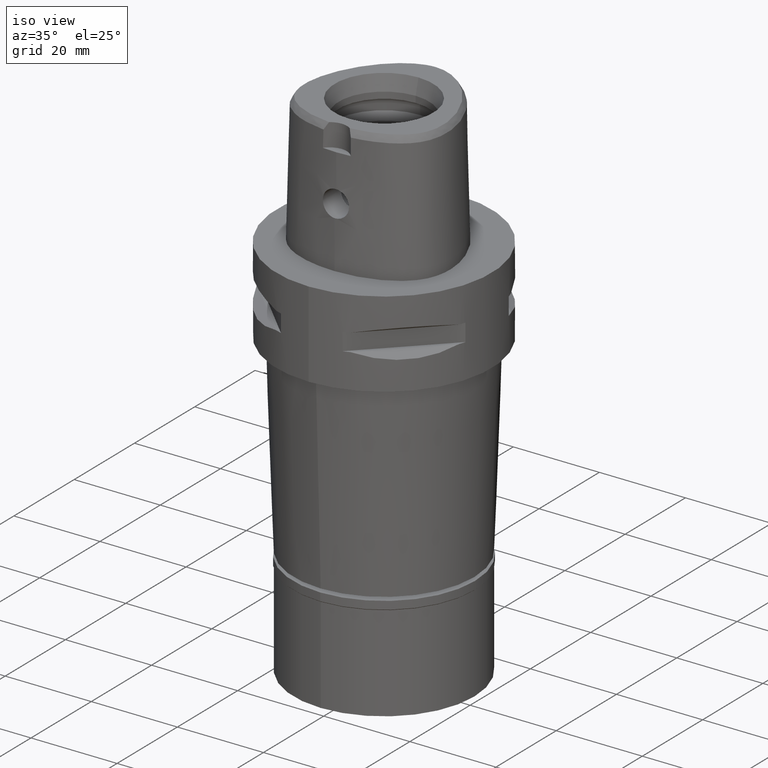
[diagram: clean part render]
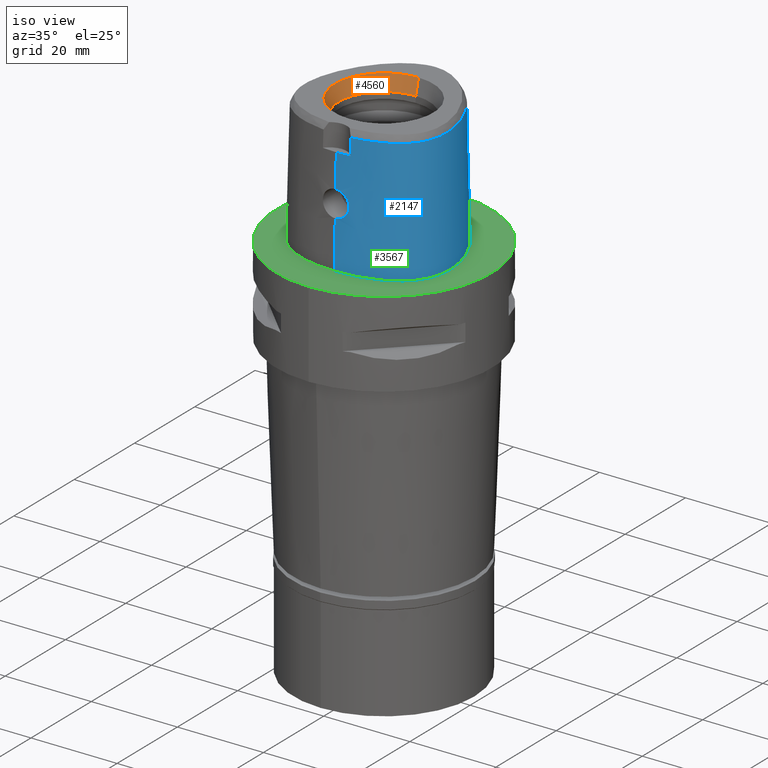
[diagram: same view with three faces highlighted in distinct colors, each labeled with its STEP entity id]
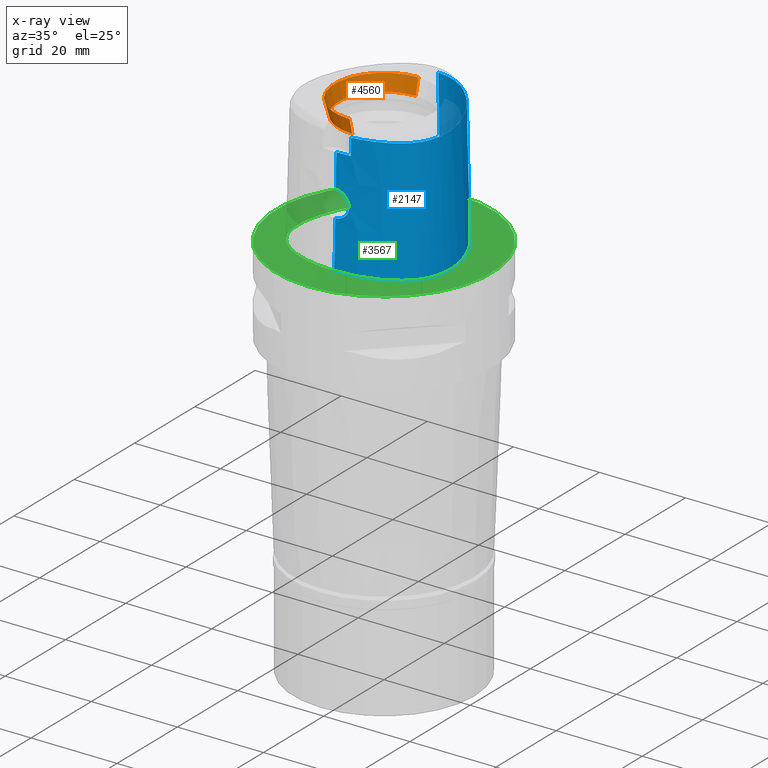
[diagram: x-ray of the same camera — body ghosted, the three highlighted faces saturated]
A machine part, iso view with three faces highlighted in distinct colors.
The next image is the same camera in x-ray (body ghosted, the three faces saturated) — at least one of them is partly hidden behind the body in this view.
Their STEP definitions:

[orange] entity #4560 — the highlighted conical surface has half-angle 15 deg.
#42 = AXIS2_PLACEMENT_3D ( 'NONE', #746, #2156, #1814 ) ;
#189 = VECTOR ( 'NONE', #4625, 1000.000000000000114 ) ;
#321 = CARTESIAN_POINT ( 'NONE',  ( 0.0000000000000000000, 11.43782217350000074, 30.00000000000000000 ) ) ;
#547 = VERTEX_POINT ( 'NONE', #2589 ) ;
#579 = CARTESIAN_POINT ( 'NONE',  ( 0.0000000000000000000, -10.50000000000000000, 26.50000000000000000 ) ) ;
#646 = FACE_OUTER_BOUND ( 'NONE', #3792, .T. ) ;
#746 = CARTESIAN_POINT ( 'NONE',  ( 0.0000000000000000000, 1.570609519905999910E-14, 28.25000000000000000 ) ) ;
#820 = CARTESIAN_POINT ( 'NONE',  ( 0.0000000000000000000, 10.50000000000000000, 26.50000000000000000 ) ) ;
#956 = DIRECTION ( 'NONE',  ( 0.0000000000000000000, 0.0000000000000000000, 1.000000000000000000 ) ) ;
#1047 = VERTEX_POINT ( 'NONE', #2767 ) ;
#1293 = EDGE_CURVE ( 'NONE', #1047, #547, #3263, .T. ) ;
#1507 = AXIS2_PLACEMENT_3D ( 'NONE', #3999, #956, #3305 ) ;
#1814 = DIRECTION ( 'NONE',  ( 0.0000000000000000000, 1.000000000000000000, 0.0000000000000000000 ) ) ;
#1973 = ORIENTED_EDGE ( 'NONE', *, *, #4007, .T. ) ;
#2090 = CONICAL_SURFACE ( 'NONE', #42, 10.96891108674999948, 0.2617993877991000029 ) ;
#2156 = DIRECTION ( 'NONE',  ( 0.0000000000000000000, 0.0000000000000000000, 1.000000000000000000 ) ) ;
#2293 = DIRECTION ( 'NONE',  ( 0.0000000000000000000, 1.000000000000000000, 0.0000000000000000000 ) ) ;
#2313 = CARTESIAN_POINT ( 'NONE',  ( 0.0000000000000000000, 1.570609519905999910E-14, 26.50000000000000000 ) ) ;
#2347 = VECTOR ( 'NONE', #3874, 1000.000000000000114 ) ;
#2375 = VERTEX_POINT ( 'NONE', #2431 ) ;
#2431 = CARTESIAN_POINT ( 'NONE',  ( 0.0000000000000000000, -11.43782217350000074, 30.00000000000000000 ) ) ;
#2452 = LINE ( 'NONE', #579, #189 ) ;
#2589 = CARTESIAN_POINT ( 'NONE',  ( 0.0000000000000000000, -10.50000000000000000, 26.50000000000000000 ) ) ;
#2767 = CARTESIAN_POINT ( 'NONE',  ( 0.0000000000000000000, 10.50000000000000000, 26.50000000000000000 ) ) ;
#3001 = DIRECTION ( 'NONE',  ( 0.0000000000000000000, 0.0000000000000000000, 1.000000000000000000 ) ) ;
#3023 = EDGE_CURVE ( 'NONE', #1047, #4062, #4198, .T. ) ;
#3243 = ORIENTED_EDGE ( 'NONE', *, *, #4871, .F. ) ;
#3263 = CIRCLE ( 'NONE', #4603, 10.50000000000000000 ) ;
#3305 = DIRECTION ( 'NONE',  ( 0.0000000000000000000, 1.000000000000000000, 0.0000000000000000000 ) ) ;
#3611 = CIRCLE ( 'NONE', #1507, 11.43782217350000074 ) ;
#3792 = EDGE_LOOP ( 'NONE', ( #3243, #4188, #4222, #1973 ) ) ;
#3874 = DIRECTION ( 'NONE',  ( 0.0000000000000000000, 0.2588190451023999472, 0.9659258262891006197 ) ) ;
#3999 = CARTESIAN_POINT ( 'NONE',  ( 0.0000000000000000000, 1.570609519905999910E-14, 30.00000000000000000 ) ) ;
#4007 = EDGE_CURVE ( 'NONE', #4062, #2375, #3611, .T. ) ;
#4062 = VERTEX_POINT ( 'NONE', #321 ) ;
#4188 = ORIENTED_EDGE ( 'NONE', *, *, #1293, .F. ) ;
#4198 = LINE ( 'NONE', #820, #2347 ) ;
#4222 = ORIENTED_EDGE ( 'NONE', *, *, #3023, .T. ) ;
#4560 = ADVANCED_FACE ( 'NONE', ( #646 ), #2090, .F. ) ;
#4603 = AXIS2_PLACEMENT_3D ( 'NONE', #2313, #3001, #2293 ) ;
#4625 = DIRECTION ( 'NONE',  ( 0.0000000000000000000, -0.2588190451023999472, 0.9659258262891006197 ) ) ;
#4871 = EDGE_CURVE ( 'NONE', #547, #2375, #2452, .T. ) ;

[blue] entity #2147 — the highlighted face is a freeform B-spline surface patch.
#86 = CARTESIAN_POINT ( 'NONE',  ( 8.782085053823999843, -14.58525444334000021, 19.20397109997000129 ) ) ;
#91 = CARTESIAN_POINT ( 'NONE',  ( 16.66912841146282531, -8.445800776827478984, 4.345083226867888643E-07 ) ) ;
#104 = FACE_OUTER_BOUND ( 'NONE', #2736, .T. ) ;
#108 = CARTESIAN_POINT ( 'NONE',  ( 4.728927202146822495, 17.73480467756198564, 4.345083226867888643E-07 ) ) ;
#118 = CARTESIAN_POINT ( 'NONE',  ( 16.79165444020089026, -0.3537785292841398865, 28.52071728562177455 ) ) ;
#128 = CARTESIAN_POINT ( 'NONE',  ( 16.00353219674999750, -8.149703023821999182, 29.09116414154000196 ) ) ;
#129 = CARTESIAN_POINT ( 'NONE',  ( 2.709953204679841132, -16.00846021379278739, 12.59958595635182732 ) ) ;
#134 = CARTESIAN_POINT ( 'NONE',  ( 2.040572355431404361, 18.55015623930288626, 4.345083226867888643E-07 ) ) ;
#152 = CARTESIAN_POINT ( 'NONE',  ( 16.84071370723999905, -5.352498061920000438, 29.09116414154000196 ) ) ;
#153 = CARTESIAN_POINT ( 'NONE',  ( 1.719191830040064373, -16.11523926597385525, 11.47872671524811672 ) ) ;
#172 = CARTESIAN_POINT ( 'NONE',  ( 13.36241655668000128, -12.29868522778000006, 9.316778058403000884 ) ) ;
#186 = CARTESIAN_POINT ( 'NONE',  ( 4.422474504765441239, 17.08283549833035764, 28.52071728562177455 ) ) ;
#198 = CARTESIAN_POINT ( 'NONE',  ( 4.628819212272000883, 17.52182784769000179, 9.316778058403000884 ) ) ;
#220 = VECTOR ( 'NONE', #3479, 1000.000000000000114 ) ;
#230 = CARTESIAN_POINT ( 'NONE',  ( 1.120763508487367055, -16.15358090583465867, 11.16333240776604008 ) ) ;
#251 = CARTESIAN_POINT ( 'NONE',  ( -0.5293534872091000265, 17.95181534089000053, 29.09116414154000196 ) ) ;
#252 = CARTESIAN_POINT ( 'NONE',  ( 2.520317714005585241, -15.94834054842959503, 15.72060082174888151 ) ) ;
#276 = CARTESIAN_POINT ( 'NONE',  ( -0.5443412043882999152, 18.19851680907000357, 19.20397109997000129 ) ) ;
#305 = CARTESIAN_POINT ( 'NONE',  ( -0.3829342216691000167, 18.70352949967000100, -0.5704149831674999449 ) ) ;
#306 = CARTESIAN_POINT ( 'NONE',  ( 1.354452607727719027, -16.00396228356807171, 16.73322745257438271 ) ) ;
#453 = CARTESIAN_POINT ( 'NONE',  ( 3.191384142201736829, -15.58827398948734633, 27.24714251809000132 ) ) ;
#467 = CARTESIAN_POINT ( 'NONE',  ( 13.06460231238554393, -11.91950040983019576, 28.52071728562177455 ) ) ;
#475 = CARTESIAN_POINT ( 'NONE',  ( 14.61870759099000061, -11.12154141623999948, 9.316778058403000884 ) ) ;
#481 = CARTESIAN_POINT ( 'NONE',  ( 17.49754711232104398, -0.2285937519071054580, 4.345083226867888643E-07 ) ) ;
#484 = DIRECTION ( 'NONE',  ( 4.018628974002883478E-12, 0.02499051285785929000, -0.9996876883642715761 ) ) ;
#498 = CARTESIAN_POINT ( 'NONE',  ( 14.79871908233999989, -11.29217324556000079, -0.5704149831674999449 ) ) ;
#499 = CARTESIAN_POINT ( 'NONE',  ( 2.290593162244019876, -16.06186194956425339, 11.98364703425943922 ) ) ;
#523 = CARTESIAN_POINT ( 'NONE',  ( 16.21839715411000071, -9.363695962771000580, -0.5704149831674999449 ) ) ;
#524 = CARTESIAN_POINT ( 'NONE',  ( 1.805376232608897125, -16.10834772479885046, 11.53923680361577730 ) ) ;
#530 = CARTESIAN_POINT ( 'NONE',  ( 14.38008118744461505, 8.302343744541415660, 4.345083226867888643E-07 ) ) ;
#550 = CARTESIAN_POINT ( 'NONE',  ( 1.321318947253000253, -16.50155085332000127, -0.5704149831674999449 ) ) ;
#551 = CARTESIAN_POINT ( 'NONE',  ( 0.9939297242890960948, -16.15959612542589952, 11.11569146158395149 ) ) ;
#555 = CARTESIAN_POINT ( 'NONE',  ( 8.946741552459641866, -15.03902342722821928, 4.345083226867888643E-07 ) ) ;
#570 = CARTESIAN_POINT ( 'NONE',  ( 16.53021709249000182, 3.708305586923000163, -0.5704149831674999449 ) ) ;
#571 = CARTESIAN_POINT ( 'NONE',  ( 3.044506884776516209, -15.94333381584075937, 13.81108558313461643 ) ) ;
#576 = CARTESIAN_POINT ( 'NONE',  ( 16.20602471021097557, -9.356552728934348195, 4.345083226867888643E-07 ) ) ;
#588 = EDGE_CURVE ( 'NONE', #3573, #3256, #3574, .T. ) ;
#652 = CARTESIAN_POINT ( 'NONE',  ( 1.531589067142498539, -15.99732691922906724, 16.63945844436470622 ) ) ;
#678 = CARTESIAN_POINT ( 'NONE',  ( 7.514850429947999899, 15.25369591979000106, 29.09116414154000196 ) ) ;
#679 = CARTESIAN_POINT ( 'NONE',  ( 2.232748692361818943, -15.96374470980125082, 16.07819212816553289 ) ) ;
#708 = CARTESIAN_POINT ( 'NONE',  ( 2.164021906619612690, -15.96736812113673842, 16.14931344321803053 ) ) ;
#776 = ORIENTED_EDGE ( 'NONE', *, *, #4872, .F. ) ;
#802 = CARTESIAN_POINT ( 'NONE',  ( 0.0000000000000000000, -16.02877864023999877, 17.05000000000000071 ) ) ;
#824 = CARTESIAN_POINT ( 'NONE',  ( 13.20908619622000124, -12.10346103709999888, 19.20397109997000129 ) ) ;
#828 = VECTOR ( 'NONE', #484, 1000.000000000000114 ) ;
#841 = CARTESIAN_POINT ( 'NONE',  ( 3.738627708319855358, -15.49270856215349745, 28.52071728562177100 ) ) ;
#847 = CARTESIAN_POINT ( 'NONE',  ( 15.05961594325999897, -9.784613920931999331, 29.09116414154000196 ) ) ;
#871 = CARTESIAN_POINT ( 'NONE',  ( 15.57503056141999842, -8.992248086213999514, 29.09116414154000196 ) ) ;
#876 = CARTESIAN_POINT ( 'NONE',  ( 17.56373941852812948, -5.455996092203990955, 4.345083226867888643E-07 ) ) ;
#890 = CARTESIAN_POINT ( 'NONE',  ( 17.57791640427000246, -5.458025466922999946, -0.5704149831674999449 ) ) ;
#891 = CARTESIAN_POINT ( 'NONE',  ( 0.9209982704668406850, -16.16262558226604185, 11.09193420934357732 ) ) ;
#916 = CARTESIAN_POINT ( 'NONE',  ( 15.66039569940999954, -10.22138777850999958, -0.5704149831674999449 ) ) ;
#917 = CARTESIAN_POINT ( 'NONE',  ( 2.147962331140137682, -16.07679769526339086, 11.83463701146487246 ) ) ;
#940 = CARTESIAN_POINT ( 'NONE',  ( -0.3531410365654999994, 17.96248697991999776, 29.09116414154000196 ) ) ;
#941 = CARTESIAN_POINT ( 'NONE',  ( 3.027798455715707160, -15.95003164277662755, 13.62032956274716966 ) ) ;
#964 = CARTESIAN_POINT ( 'NONE',  ( 14.17736229189000063, 8.185312112537999951, 9.316778058403000884 ) ) ;
#993 = CARTESIAN_POINT ( 'NONE',  ( 7.668807555323000180, 15.44980294377999996, 19.20397109997000129 ) ) ;
#1030 = CARTESIAN_POINT ( 'NONE',  ( -0.5743166387467999456, 18.69191974542999901, -0.5704149831674999449 ) ) ;
#1031 = CARTESIAN_POINT ( 'NONE',  ( 2.836520581861626589, -15.93251973351802064, 15.12113420123065843 ) ) ;
#1057 = CARTESIAN_POINT ( 'NONE',  ( 17.51166499250999919, -0.2260900516163000251, -0.5704149831674999449 ) ) ;
#1084 = CARTESIAN_POINT ( 'NONE',  ( 2.356615372638827477, -15.95714923954086295, 15.93698914121857335 ) ) ;
#1215 = CARTESIAN_POINT ( 'NONE',  ( 16.47905536661229320, -6.962316254603853061, 28.52071728562177455 ) ) ;
#1220 = CARTESIAN_POINT ( 'NONE',  ( 11.69401646775999914, -13.71637918426000091, -0.5704149831674999449 ) ) ;
#1226 = CARTESIAN_POINT ( 'NONE',  ( 17.71143734472079956, -3.269218750071293922, 4.345083226867888643E-07 ) ) ;
#1241 = B_SPLINE_CURVE_WITH_KNOTS ( 'NONE', 3,
 ( #1549, #3039, #4544, #802 ),
 .UNSPECIFIED., .F., .F.,
 ( 4, 4 ),
 ( 0.0000000000000000000, 1.000000000000000000 ),
 .UNSPECIFIED. ) ;
#1244 = CARTESIAN_POINT ( 'NONE',  ( 0.0000000000000000000, -16.02877864023999877, 17.05000000000000071 ) ) ;
#1247 = CARTESIAN_POINT ( 'NONE',  ( 1.286803344597999832, -15.75925545520999727, 29.09116414154000196 ) ) ;
#1262 = CARTESIAN_POINT ( 'NONE',  ( 3.168920890822999770, -15.55911073834000113, 28.52071374672999582 ) ) ;
#1267 = CARTESIAN_POINT ( 'NONE',  ( 16.94089118468999899, -7.099401425617999806, 9.316778058403000884 ) ) ;
#1288 = CARTESIAN_POINT ( 'NONE',  ( 3.235096591086000117, -15.64751801257999908, 24.70000006080999810 ) ) ;
#1317 = CARTESIAN_POINT ( 'NONE',  ( 4.965998056545999795, -15.68039670603999980, 19.20397109997000129 ) ) ;
#1318 = CARTESIAN_POINT ( 'NONE',  ( 2.806282367902104280, -15.99380854387472795, 12.80500890572250583 ) ) ;
#1344 = CARTESIAN_POINT ( 'NONE',  ( 14.39249255842999986, 8.309508952293001016, -0.5704149831674999449 ) ) ;
#1345 = CARTESIAN_POINT ( 'NONE',  ( -2.838107990769000373E-12, -16.18126839358999902, 10.94999999999999929 ) ) ;
#1359 = CARTESIAN_POINT ( 'NONE',  ( 1.084489111474178591, -15.83754148653836147, 24.70000016056457426 ) ) ;
#1371 = CARTESIAN_POINT ( 'NONE',  ( -0.3730031599679000665, 18.45651532641999992, 9.316778058403000884 ) ) ;
#1372 = CARTESIAN_POINT ( 'NONE',  ( 2.907704111751978626, -15.93016185020671927, 14.92213459652805163 ) ) ;
#1399 = CARTESIAN_POINT ( 'NONE',  ( 17.26695525563999922, -0.2694874902659999960, 9.316778058403000884 ) ) ;
#1400 = CARTESIAN_POINT ( 'NONE',  ( 1.616099766049513997, -15.99381337938741687, 16.58846643699799728 ) ) ;
#1431 = CARTESIAN_POINT ( 'NONE',  ( 2.759961640973295882, -15.93564958624567929, 15.30749493561481422 ) ) ;
#1523 = EDGE_CURVE ( 'NONE', #3373, #1776, #4709, .T. ) ;
#1549 = CARTESIAN_POINT ( 'NONE',  ( 2.030224829794000080E-07, -15.83752876601000281, 24.70000006102999990 ) ) ;
#1593 = CARTESIAN_POINT ( 'NONE',  ( 14.43869609963999956, -10.95090958691999816, 19.20397109997000129 ) ) ;
#1598 = CARTESIAN_POINT ( 'NONE',  ( 17.16495050735646188, -7.165908200023464403, 4.345083226867888643E-07 ) ) ;
#1609 = LINE ( 'NONE', #4266, #220 ) ;
#1613 = CARTESIAN_POINT ( 'NONE',  ( -1.070056051176000000, -15.95437342169000061, 19.20397109997000129 ) ) ;
#1632 = CARTESIAN_POINT ( 'NONE',  ( 16.01658383235377414, -8.155509186612423633, 28.52071728562177455 ) ) ;
#1639 = CARTESIAN_POINT ( 'NONE',  ( 13.05575583577000032, -11.90823684641999947, 29.09116414154000196 ) ) ;
#1640 = CARTESIAN_POINT ( 'NONE',  ( 2.417729193041643132, -16.04731727844026778, 12.13798983179897206 ) ) ;
#1662 = CARTESIAN_POINT ( 'NONE',  ( 17.72574106728999865, -3.269125760247999946, -0.5704149831674999449 ) ) ;
#1663 = CARTESIAN_POINT ( 'NONE',  ( 0.1898211197375807846, -16.18126839358999902, 10.94999999999999929 ) ) ;
#1676 = CARTESIAN_POINT ( 'NONE',  ( 15.07117004567454543, -9.793013887527042272, 28.52071728562177455 ) ) ;
#1683 = CARTESIAN_POINT ( 'NONE',  ( 8.866858698604000111, -14.81887808389999961, 9.316778058403000884 ) ) ;
#1684 = CARTESIAN_POINT ( 'NONE',  ( 1.158353828547359132, -16.15167258786868132, 11.17852165137633769 ) ) ;
#1700 = CARTESIAN_POINT ( 'NONE',  ( 13.75951381385367078, 7.944084035686455714, 28.52071728562177455 ) ) ;
#1711 = CARTESIAN_POINT ( 'NONE',  ( 2.043508294531000136, 18.56419797690000451, -0.5704149831674999449 ) ) ;
#1712 = CARTESIAN_POINT ( 'NONE',  ( 2.044225401081670057, -16.08701963945035374, 11.73626748626442584 ) ) ;
#1739 = CARTESIAN_POINT ( 'NONE',  ( 2.829313881745510351, -15.93280562740808470, 15.13908937170583080 ) ) ;
#1763 = CARTESIAN_POINT ( 'NONE',  ( 7.976721806072998966, 15.84201699177000044, -0.5704149831674999449 ) ) ;
#1764 = CARTESIAN_POINT ( 'NONE',  ( 2.170299400654048139, -15.96703807926082597, 16.14297866672072956 ) ) ;
#1776 = VERTEX_POINT ( 'NONE', #2838 ) ;
#1821 = CARTESIAN_POINT ( 'NONE',  ( 1.217867162102865608, -16.00861105600192857, 16.79681041045230216 ) ) ;
#1988 = CARTESIAN_POINT ( 'NONE',  ( 15.46013578069000083, -10.07579649265000121, 9.316778058403000884 ) ) ;
#2002 = CARTESIAN_POINT ( 'NONE',  ( 7.523733068098901633, 15.26501041873709674, 28.52071728562177455 ) ) ;
#2010 = CARTESIAN_POINT ( 'NONE',  ( 15.25987586197000034, -9.930205206791999473, 19.20397109997000129 ) ) ;
#2011 = CARTESIAN_POINT ( 'NONE',  ( 0.3842297570385419525, -16.17878268541346998, 10.96777226348876866 ) ) ;
#2026 = CARTESIAN_POINT ( 'NONE',  ( 11.33338046474312932, -13.08225241901494407, 28.52071728562177455 ) ) ;
#2032 = CARTESIAN_POINT ( 'NONE',  ( 16.68217932777000101, -8.451606619631000683, -0.5704149831674999449 ) ) ;
#2056 = CARTESIAN_POINT ( 'NONE',  ( 11.44887800104999975, -13.28533829640999997, 19.20397109997000129 ) ) ;
#2057 = CARTESIAN_POINT ( 'NONE',  ( 1.150837130458690405, -16.15205889506641057, 11.17544410961304102 ) ) ;
#2060 = ORIENTED_EDGE ( 'NONE', *, *, #2113, .F. ) ;
#2077 = CARTESIAN_POINT ( 'NONE',  ( 0.4768940199498000188, 18.48195206860000184, 9.316778058403000884 ) ) ;
#2078 = CARTESIAN_POINT ( 'NONE',  ( 3.049961347112720489, -15.93921296701097923, 13.94964838113523697 ) ) ;
#2087 = LINE ( 'NONE', #3586, #828 ) ;
#2113 = EDGE_CURVE ( 'NONE', #3573, #2148, #4288, .T. ) ;
#2139 = CARTESIAN_POINT ( 'NONE',  ( 0.0000000000000000000, -16.02877864023999877, 17.05000000000000071 ) ) ;
#2147 = ADVANCED_FACE ( 'NONE', ( #104 ), #3637, .T. ) ;
#2148 = VERTEX_POINT ( 'NONE', #2466 ) ;
#2158 = CARTESIAN_POINT ( 'NONE',  ( -2.281136508063999888E-11, -16.45500000000000185, 1.845190666927000073E-13 ) ) ;
#2161 = CARTESIAN_POINT ( 'NONE',  ( 0.3724840145390385659, -16.02877864024000232, 17.04999999999999716 ) ) ;
#2180 = CARTESIAN_POINT ( 'NONE',  ( -2.838107990769000373E-12, -16.18126839358999902, 10.94999999999999929 ) ) ;
#2183 = ORIENTED_EDGE ( 'NONE', *, *, #3830, .T. ) ;
#2187 = CARTESIAN_POINT ( 'NONE',  ( 0.4640360881540999682, 18.23425857391999827, 19.20397109997000129 ) ) ;
#2188 = CARTESIAN_POINT ( 'NONE',  ( 2.014841840659068239, -15.97504399877426629, 16.29192479722133768 ) ) ;
#2247 = ORIENTED_EDGE ( 'NONE', *, *, #1523, .T. ) ;
#2326 = CARTESIAN_POINT ( 'NONE',  ( 11.32630876770000050, -13.06981785248999905, 29.09116414154000196 ) ) ;
#2352 = CARTESIAN_POINT ( 'NONE',  ( 15.78948609231999711, -9.116064045066000432, 19.20397109997000129 ) ) ;
#2370 = CARTESIAN_POINT ( 'NONE',  ( -1.089046662970999835, -16.44835922628000091, -0.5704149831674999449 ) ) ;
#2371 = CARTESIAN_POINT ( 'NONE',  ( 2.114644142904483548, -16.08015782783963132, 11.80200641015006546 ) ) ;
#2376 = CARTESIAN_POINT ( 'NONE',  ( 8.523788181821999042E-11, 18.69499999997999851, 1.832978213655999910E-13 ) ) ;
#2384 = CARTESIAN_POINT ( 'NONE',  ( 0.6295828025439401676, 17.98202997637493183, 28.52071728562177455 ) ) ;
#2394 = CARTESIAN_POINT ( 'NONE',  ( -1.060560745278999795, -15.70738051939000002, 29.09116414154000196 ) ) ;
#2395 = CARTESIAN_POINT ( 'NONE',  ( 2.223227574825757280, -16.06911398227905252, 11.90960399256272417 ) ) ;
#2410 = CARTESIAN_POINT ( 'NONE',  ( 16.99625257117376265, -3.273868232426603964, 28.52071728562177455 ) ) ;
#2418 = CARTESIAN_POINT ( 'NONE',  ( 16.45596361743000102, -8.350972087694000123, 9.316778058403000884 ) ) ;
#2426 = CARTESIAN_POINT ( 'NONE',  ( 1.683697721872750019, -16.45499998913591710, 4.345083226867888643E-07 ) ) ;
#2444 = CARTESIAN_POINT ( 'NONE',  ( 15.82879716894000310, 3.455165066914999805, 29.09116414154000196 ) ) ;
#2466 = CARTESIAN_POINT ( 'NONE',  ( 3.168920890822999770, -15.55911073834000113, 28.52071374672999582 ) ) ;
#2483 = CARTESIAN_POINT ( 'NONE',  ( 2.169052010909533923, -15.77399788591331919, 24.70000016056457426 ) ) ;
#2500 = CARTESIAN_POINT ( 'NONE',  ( 1.890839577645999858, 17.83402817805000140, 29.09116414154000196 ) ) ;
#2501 = CARTESIAN_POINT ( 'NONE',  ( 1.399412083726095712, -16.00233608542867714, 16.71046994217811488 ) ) ;
#2515 = CARTESIAN_POINT ( 'NONE',  ( 3.235096591086000117, -15.64751801257999908, 24.70000006080999810 ) ) ;
#2527 = CARTESIAN_POINT ( 'NONE',  ( 4.416345101405000584, 17.06979537138000325, 29.09116414154000196 ) ) ;
#2528 = CARTESIAN_POINT ( 'NONE',  ( 2.681016418395049783, -15.93974068711152903, 15.46783011061541302 ) ) ;
#2550 = CARTESIAN_POINT ( 'NONE',  ( 11.28662484523000131, 12.30111473228000030, 9.316778058403000884 ) ) ;
#2575 = CARTESIAN_POINT ( 'NONE',  ( 2.824468722466984882, -15.93300016794371388, 15.15105085638157689 ) ) ;
#2704 = CARTESIAN_POINT ( 'NONE',  ( 15.84228676733190966, 3.460033425849529998, 28.52071728562177455 ) ) ;
#2715 = CARTESIAN_POINT ( 'NONE',  ( 11.57144723440999989, -13.50085874034000000, 9.316778058403000884 ) ) ;
#2736 = EDGE_LOOP ( 'NONE', ( #776, #2183, #2060, #4622, #3533, #4661, #4458, #2247 ) ) ;
#2737 = CARTESIAN_POINT ( 'NONE',  ( 5.053620745127998859, -16.16974069189999952, -0.5704149831674999449 ) ) ;
#2738 = CARTESIAN_POINT ( 'NONE',  ( 1.466707760604532451, -16.13401281180511404, 11.31839107166934610 ) ) ;
#2741 = EDGE_CURVE ( 'NONE', #4554, #3174, #4646, .T. ) ;
#2744 = CARTESIAN_POINT ( 'NONE',  ( 11.68694516044944898, -13.70394530302398728, 4.345083226867888643E-07 ) ) ;
#2757 = CARTESIAN_POINT ( 'NONE',  ( 16.70311393321999915, -7.028822804589999862, 19.20397109997000129 ) ) ;
#2758 = CARTESIAN_POINT ( 'NONE',  ( 1.078575942915509511, -16.15565394761468809, 11.14687127074786943 ) ) ;
#2762 = CARTESIAN_POINT ( 'NONE',  ( -2.281136508063999888E-11, -16.45500000000000185, 1.845190666927000073E-13 ) ) ;
#2770 = CARTESIAN_POINT ( 'NONE',  ( -2.941210555049999900E-11, 17.98202997909999823, 28.52071728569000086 ) ) ;
#2779 = CARTESIAN_POINT ( 'NONE',  ( -0.7201291678950000330, -16.21519136150999785, 9.316778058403000884 ) ) ;
#2780 = CARTESIAN_POINT ( 'NONE',  ( 1.138812104616010679, -16.15267061231297419, 11.17057442770760645 ) ) ;
#2808 = CARTESIAN_POINT ( 'NONE',  ( 10.90668475462999965, 11.98047049059000102, 29.09116414154000196 ) ) ;
#2809 = CARTESIAN_POINT ( 'NONE',  ( 2.957688824804169947, -15.96752846870871956, 13.22897551199207911 ) ) ;
#2834 = CARTESIAN_POINT ( 'NONE',  ( 3.048883421515427017, -15.94046337244652278, 13.90502257973829003 ) ) ;
#2838 = CARTESIAN_POINT ( 'NONE',  ( 8.523788181821999042E-11, 18.69499999997999851, 1.832978213655999910E-13 ) ) ;
#2859 = CARTESIAN_POINT ( 'NONE',  ( 13.96223202536000052, 8.061115272782000574, 19.20397109997000129 ) ) ;
#2860 = CARTESIAN_POINT ( 'NONE',  ( 2.821425036078584192, -15.93312409536605934, 15.15848376097702399 ) ) ;
#2887 = CARTESIAN_POINT ( 'NONE',  ( 0.4511781563584000287, 17.98656507922999737, 29.09116414154000196 ) ) ;
#2888 = CARTESIAN_POINT ( 'NONE',  ( 2.180887052763811784, -15.96648089881372634, 16.13220278528724094 ) ) ;
#2917 = CARTESIAN_POINT ( 'NONE',  ( 1.992618722235999895, 18.32080804395000229, 9.316778058403000884 ) ) ;
#2918 = CARTESIAN_POINT ( 'NONE',  ( 2.262444582314398822, -15.96216938760132464, 16.04565077979858145 ) ) ;
#2939 = CARTESIAN_POINT ( 'NONE',  ( 1.262794661676007291, -16.00712763199256727, 16.77676499123158038 ) ) ;
#2965 = CARTESIAN_POINT ( 'NONE',  ( 2.196663950529419207, -15.96564993910013719, 16.11602529263612027 ) ) ;
#2970 = EDGE_CURVE ( 'NONE', #3256, #3174, #1241, .T. ) ;
#2988 = CARTESIAN_POINT ( 'NONE',  ( 3.235096591086000117, -15.64751801257999908, 24.70000006080999810 ) ) ;
#3039 = CARTESIAN_POINT ( 'NONE',  ( 6.782211716528618213E-08, -15.90128720080273261, 22.15000025259060479 ) ) ;
#3083 = CARTESIAN_POINT ( 'NONE',  ( 1.298308545482999898, -16.00668725457999741, 19.20397109997000129 ) ) ;
#3087 = CARTESIAN_POINT ( 'NONE',  ( 0.6801907851090955859, 18.69499998913763150, 4.345083226867888643E-07 ) ) ;
#3096 = EDGE_CURVE ( 'NONE', #4554, #3373, #1609, .T. ) ;
#3103 = CARTESIAN_POINT ( 'NONE',  ( -0.7264497210167000230, -16.46229666708999773, -0.5704149831674999449 ) ) ;
#3104 = CARTESIAN_POINT ( 'NONE',  ( 1.935527014342903085, -16.09705987418944417, 11.64218429701643132 ) ) ;
#3122 = CARTESIAN_POINT ( 'NONE',  ( 8.702202469522557493, -14.36510984286332260, 28.52071728562177455 ) ) ;
#3126 = CARTESIAN_POINT ( 'NONE',  ( -2.941210555049999900E-11, 17.98202997909999823, 28.52071728569000086 ) ) ;
#3130 = B_SPLINE_CURVE_WITH_KNOTS ( 'NONE', 3,
 ( #2770, #2384, #4284, #186, #2002, #3891, #1700, #2704, #118, #2410, #4583, #1215, #1632, #3475, #1676, #4215, #467, #2026, #3122, #3169, #841, #1262 ),
 .UNSPECIFIED., .F., .F.,
 ( 4, 1, 1, 1, 1, 1, 1, 1, 1, 1, 1, 1, 1, 1, 1, 1, 1, 1, 1, 4 ),
 ( 0.0000000000000000000, 0.04404152929334301941, 0.08808305858541759514, 0.1761661171698838402, 0.2642491757542444475, 0.3523322343386050548, 0.4404152929230712998, 0.5284983515073261584, 0.5725398807996122663, 0.6165814100916867657, 0.6606229393839728736, 0.6826437040299572212, 0.7046644686761530663, 0.7266852333222432181, 0.7487059979682276767, 0.7927475272605136736, 0.8367890565526939772, 0.8808305858448742809, 0.9689136444292453243, 1.000000000000000000 ),
 .UNSPECIFIED. ) ;
#3131 = CARTESIAN_POINT ( 'NONE',  ( 16.00394162322000113, -9.239880003917999574, 9.316778058403000884 ) ) ;
#3154 = CARTESIAN_POINT ( 'NONE',  ( 2.130834279647313867, -16.07853149005596194, 11.81777582520774672 ) ) ;
#3158 = VERTEX_POINT ( 'NONE', #3126 ) ;
#3169 = CARTESIAN_POINT ( 'NONE',  ( 5.902447799197943823, -15.16907841529542011, 28.52071728562177810 ) ) ;
#3174 = VERTEX_POINT ( 'NONE', #1244 ) ;
#3177 = CARTESIAN_POINT ( 'NONE',  ( 13.51574691712999865, -12.49390941845000036, -0.5704149831674999449 ) ) ;
#3178 = CARTESIAN_POINT ( 'NONE',  ( 1.979050802169637135, -16.09313883417849311, 11.67852903117094066 ) ) ;
#3206 = CARTESIAN_POINT ( 'NONE',  ( 16.77753578190999662, -0.3562823675655000244, 29.09116414154000196 ) ) ;
#3207 = CARTESIAN_POINT ( 'NONE',  ( 2.141618861872677471, -16.07744231414368485, 11.82835874812643162 ) ) ;
#3231 = CARTESIAN_POINT ( 'NONE',  ( 1.898958778535286829, -15.98067541706731021, 16.38724889510307747 ) ) ;
#3256 = VERTEX_POINT ( 'NONE', #3547 ) ;
#3257 = CARTESIAN_POINT ( 'NONE',  ( 4.735056267706000632, 17.74784408584999795, -0.5704149831674999449 ) ) ;
#3287 = CARTESIAN_POINT ( 'NONE',  ( 11.09665479993000048, 12.14079261143999844, 19.20397109997000129 ) ) ;
#3288 = CARTESIAN_POINT ( 'NONE',  ( 3.032153927794993375, -15.93034332000361708, 14.38503233290858674 ) ) ;
#3313 = CARTESIAN_POINT ( 'NONE',  ( 17.02224551878000014, -0.3128849289157000224, 19.20397109997000129 ) ) ;
#3335 = CARTESIAN_POINT ( 'NONE',  ( 0.7741482008192049902, -16.02257322970521258, 16.98085959781950294 ) ) ;
#3373 = VERTEX_POINT ( 'NONE', #2158 ) ;
#3475 = CARTESIAN_POINT ( 'NONE',  ( 15.58740368722242131, -8.999391713747380450, 28.52071728562177455 ) ) ;
#3479 = DIRECTION ( 'NONE',  ( -1.823472073901955390E-12, -0.02499051295371941192, -0.9996876883618752707 ) ) ;
#3482 = CARTESIAN_POINT ( 'NONE',  ( 3.213444788215948034, -15.61774735051721308, 25.97357128944999971 ) ) ;
#3502 = CARTESIAN_POINT ( 'NONE',  ( 16.22974790709000104, -8.250337555757999652, 19.20397109997000129 ) ) ;
#3503 = CARTESIAN_POINT ( 'NONE',  ( 2.638828814099706932, -16.01860464026678699, 12.46732066279884243 ) ) ;
#3529 = CARTESIAN_POINT ( 'NONE',  ( 17.33218217193000399, -5.422849665255000673, 9.316778058403000884 ) ) ;
#3530 = CARTESIAN_POINT ( 'NONE',  ( 1.306758668679829150, -16.14399373876757338, 11.23972581489133837 ) ) ;
#3533 = ORIENTED_EDGE ( 'NONE', *, *, #2970, .T. ) ;
#3547 = CARTESIAN_POINT ( 'NONE',  ( 2.030224829794000080E-07, -15.83752876601000281, 24.70000006102999990 ) ) ;
#3550 = CARTESIAN_POINT ( 'NONE',  ( 2.775961287969038960, -15.99857004330619503, 12.73620107529055190 ) ) ;
#3556 = CARTESIAN_POINT ( 'NONE',  ( 14.78833379608199472, -11.28232909406208151, 4.345083226867888643E-07 ) ) ;
#3573 = VERTEX_POINT ( 'NONE', #2988 ) ;
#3574 = B_SPLINE_CURVE_WITH_KNOTS ( 'NONE', 3,
 ( #2515, #2483, #1359, #4834 ),
 .UNSPECIFIED., .F., .F.,
 ( 4, 4 ),
 ( 0.0000000000000000000, 1.000000000000000000 ),
 .UNSPECIFIED. ) ;
#3576 = CARTESIAN_POINT ( 'NONE',  ( 3.050149896193000476, -15.93316336324772031, 14.18941404704229647 ) ) ;
#3586 = CARTESIAN_POINT ( 'NONE',  ( -2.941210555049999900E-11, 17.98202997909999823, 28.52071728569000086 ) ) ;
#3633 = CARTESIAN_POINT ( 'NONE',  ( 16.06260381011999883, 3.539545240251000369, 19.20397109997000129 ) ) ;
#3637 = B_SPLINE_SURFACE_WITH_KNOTS ( 'NONE', 3, 3, ( 
 ( #2370, #4686, #1613, #2394 ),
 ( #3103, #2779, #3877, #4617 ),
 ( #550, #3833, #3083, #1247 ),
 ( #2737, #4246, #1317, #3857 ),
 ( #4201, #1683, #86, #4590 ),
 ( #1220, #2715, #2056, #2326 ),
 ( #3177, #172, #824, #1639 ),
 ( #498, #475, #1593, #4224 ),
 ( #916, #1988, #2010, #847 ),
 ( #523, #3131, #2352, #871 ),
 ( #2032, #2418, #3502, #128 ),
 ( #4638, #1267, #2757, #4268 ),
 ( #890, #3529, #3902, #152 ),
 ( #1662, #4662, #3930, #3687 ),
 ( #1057, #1399, #3313, #3206 ),
 ( #570, #4346, #3633, #2444 ),
 ( #1344, #964, #2859, #4035 ),
 ( #4422, #2550, #3287, #2808 ),
 ( #1763, #4056, #993, #678 ),
 ( #3257, #198, #4766, #2527 ),
 ( #1711, #2917, #4740, #2500 ),
 ( #4797, #2077, #2187, #2887 ),
 ( #305, #1371, #4716, #940 ),
 ( #1030, #3953, #276, #251 ) ),
 .UNSPECIFIED., .F., .F., .F.,
 ( 4, 1, 1, 1, 1, 1, 1, 1, 1, 1, 1, 1, 1, 1, 1, 1, 1, 1, 1, 1, 1, 4 ),
 ( 4, 4 ),
 ( -0.01796851319151999971, 0.0000000000000000000, 0.08333333333359001227, 0.1666666666668000230, 0.2083333333334000115, 0.2500000000000000000, 0.2916666666666999919, 0.3124999999998999689, 0.3333333333332000326, 0.3541666666666000163, 0.3749999999997999933, 0.4166666666665000407, 0.4583333333330000259, 0.4999999999996999622, 0.5833333333328000192, 0.6666666666660999718, 0.7499999999993000044, 0.8333333333325000369, 0.9166666666657999896, 0.9583333333322999747, 1.000000000000000000, 1.011711214084999977 ),
 ( -8.525005271154000431E-09, 1.000000434775000002 ),
 .UNSPECIFIED. ) ;
#3687 = CARTESIAN_POINT ( 'NONE',  ( 16.98194806026000236, -3.273961227375000060, 29.09116414154000196 ) ) ;
#3688 = CARTESIAN_POINT ( 'NONE',  ( 2.320231428406501983, -15.95909571851455588, 15.98050410814320266 ) ) ;
#3830 = EDGE_CURVE ( 'NONE', #3158, #2148, #3130, .T. ) ;
#3833 = CARTESIAN_POINT ( 'NONE',  ( 1.309813746367999965, -16.25411905395000289, 9.316778058403000884 ) ) ;
#3857 = CARTESIAN_POINT ( 'NONE',  ( 4.922186712254999819, -15.43572471310999994, 29.09116414154000196 ) ) ;
#3864 = CARTESIAN_POINT ( 'NONE',  ( 15.64884223376002836, -10.21298827485060734, 4.345083226867888643E-07 ) ) ;
#3877 = CARTESIAN_POINT ( 'NONE',  ( -0.7138086147733999631, -15.96808605592000063, 19.20397109997000129 ) ) ;
#3878 = CARTESIAN_POINT ( 'NONE',  ( 2.587629427716052533, -16.02556131009697893, 12.38252332210731943 ) ) ;
#3882 = CARTESIAN_POINT ( 'NONE',  ( 7.967839657458552161, 15.83070311638254424, 4.345083226867888643E-07 ) ) ;
#3891 = CARTESIAN_POINT ( 'NONE',  ( 10.91764517733079920, 11.98972036053674906, 28.52071728562177455 ) ) ;
#3902 = CARTESIAN_POINT ( 'NONE',  ( 17.08644793958999841, -5.387673863587999712, 19.20397109997000129 ) ) ;
#3911 = CARTESIAN_POINT ( 'NONE',  ( 16.51672823753152386, 3.703437496291548836, 4.345083226867888643E-07 ) ) ;
#3930 = CARTESIAN_POINT ( 'NONE',  ( 17.22987906260000202, -3.272349404998999844, 19.20397109997000129 ) ) ;
#3931 = CARTESIAN_POINT ( 'NONE',  ( 2.744096643855139295, -16.00346064512362076, 12.66698413766678399 ) ) ;
#3953 = CARTESIAN_POINT ( 'NONE',  ( -0.5593289215676000570, 18.44521827724999952, 9.316778058403000884 ) ) ;
#3954 = CARTESIAN_POINT ( 'NONE',  ( 3.041209740384549942, -15.94490574327321930, 13.76368115324908459 ) ) ;
#3978 = CARTESIAN_POINT ( 'NONE',  ( 0.6770584128777269450, -16.17132556088388995, 11.02443681068322689 ) ) ;
#4035 = CARTESIAN_POINT ( 'NONE',  ( 13.74710175882000129, 7.936918433027000397, 29.09116414154000196 ) ) ;
#4036 = CARTESIAN_POINT ( 'NONE',  ( 1.737183591012293915, -15.98828192606207743, 16.50739953107602176 ) ) ;
#4056 = CARTESIAN_POINT ( 'NONE',  ( 7.822764680698000461, 15.64590996776999887, 9.316778058403000884 ) ) ;
#4057 = CARTESIAN_POINT ( 'NONE',  ( 2.852909278454571318, -15.93189406616820492, 15.07915126970499742 ) ) ;
#4086 = CARTESIAN_POINT ( 'NONE',  ( 2.883981873338864244, -15.93080840504315709, 14.99485968243826939 ) ) ;
#4109 = CARTESIAN_POINT ( 'NONE',  ( 2.459696765391549800, -15.95161770387216293, 15.80683248070968716 ) ) ;
#4201 = CARTESIAN_POINT ( 'NONE',  ( 8.951632343383998602, -15.05250172444999990, -0.5704149831674999449 ) ) ;
#4215 = CARTESIAN_POINT ( 'NONE',  ( 14.26907046692935666, -10.79012245165481687, 28.52071728562177455 ) ) ;
#4224 = CARTESIAN_POINT ( 'NONE',  ( 14.25868460829000028, -10.78027775760000040, 29.09116414154000196 ) ) ;
#4246 = CARTESIAN_POINT ( 'NONE',  ( 5.009809400836999771, -15.92506869896999788, 9.316778058403000884 ) ) ;
#4247 = CARTESIAN_POINT ( 'NONE',  ( 2.076784380864732160, -16.08390063340835141, 11.76594178764676180 ) ) ;
#4266 = CARTESIAN_POINT ( 'NONE',  ( -2.838107990769000373E-12, -16.18126839358999902, 10.94999999999999929 ) ) ;
#4268 = CARTESIAN_POINT ( 'NONE',  ( 16.46533668174999931, -6.958244183563000007, 29.09116414154000196 ) ) ;
#4274 = CARTESIAN_POINT ( 'NONE',  ( 11.46563507188512965, 12.45218749295843885, 4.345083226867888643E-07 ) ) ;
#4284 = CARTESIAN_POINT ( 'NONE',  ( 1.893775678555190467, 17.84807068955358034, 28.52071728562177455 ) ) ;
#4288 = B_SPLINE_CURVE_WITH_KNOTS ( 'NONE', 3,
 ( #1288, #3482, #453, #4298 ),
 .UNSPECIFIED., .F., .F.,
 ( 4, 4 ),
 ( 0.0000000000000000000, 1.000000000000000000 ),
 .UNSPECIFIED. ) ;
#4298 = CARTESIAN_POINT ( 'NONE',  ( 3.168920890822999770, -15.55911073834000113, 28.52071374672999582 ) ) ;
#4299 = CARTESIAN_POINT ( 'NONE',  ( 0.7748558813815601409, -16.16821842566323397, 11.04831638025945217 ) ) ;
#4323 = CARTESIAN_POINT ( 'NONE',  ( 3.014162081768898105, -15.95399573205362032, 13.52323755265706851 ) ) ;
#4346 = CARTESIAN_POINT ( 'NONE',  ( 16.29641045130999899, 3.623925413587000044, 9.316778058403000884 ) ) ;
#4374 = CARTESIAN_POINT ( 'NONE',  ( 1.859549321997236770, -15.98255794229956273, 16.41807320997656205 ) ) ;
#4397 = CARTESIAN_POINT ( 'NONE',  ( 1.779262221764184249, -15.98633376436652753, 16.47774649146145620 ) ) ;
#4422 = CARTESIAN_POINT ( 'NONE',  ( 11.47659489054000126, 12.46143685312999949, -0.5704149831674999449 ) ) ;
#4458 = ORIENTED_EDGE ( 'NONE', *, *, #3096, .T. ) ;
#4471 = CARTESIAN_POINT ( 'NONE',  ( 2.975249651912845295, -15.92914271478721666, 14.67846616982677332 ) ) ;
#4544 = CARTESIAN_POINT ( 'NONE',  ( 6.797731207703750827E-08, -15.96503292052238443, 19.60000012629531341 ) ) ;
#4554 = VERTEX_POINT ( 'NONE', #2180 ) ;
#4583 = CARTESIAN_POINT ( 'NONE',  ( 16.85489147434194734, -5.354527548487274302, 28.52071728562177455 ) ) ;
#4590 = CARTESIAN_POINT ( 'NONE',  ( 8.697311409043999575, -14.35163080278999814, 29.09116414154000196 ) ) ;
#4597 = CARTESIAN_POINT ( 'NONE',  ( 13.50690092805798947, -12.48264647579343567, 4.345083226867888643E-07 ) ) ;
#4617 = CARTESIAN_POINT ( 'NONE',  ( -0.7074880616518000043, -15.72098075033999720, 29.09116414154000196 ) ) ;
#4622 = ORIENTED_EDGE ( 'NONE', *, *, #588, .T. ) ;
#4638 = CARTESIAN_POINT ( 'NONE',  ( 17.17866843615999883, -7.169980046645999749, -0.5704149831674999449 ) ) ;
#4646 = B_SPLINE_CURVE_WITH_KNOTS ( 'NONE', 3,
 ( #1345, #1663, #2011, #3978, #4299, #891, #551, #2758, #230, #2780, #2057, #1684, #3530, #2738, #153, #524, #3104, #3178, #1712, #4247, #2371, #3154, #3207, #917, #2395, #499, #1640, #4663, #3878, #3503, #129, #3931, #3550, #4687, #1318, #4717, #2809, #4323, #941, #3954, #571, #2834, #2078, #3576, #3288, #4471, #4823, #1372, #4086, #4057, #1031, #1739, #2575, #2860, #1431, #2528, #252, #4109, #1084, #3688, #2918, #679, #2965, #2888, #1764, #708, #4767, #2188, #3231, #4374, #4397, #4036, #1400, #652, #2501, #306, #2939, #1821, #3335, #2161, #2139 ),
 .UNSPECIFIED., .F., .F.,
 ( 4, 2, 2, 1, 1, 1, 2, 2, 2, 2, 2, 1, 1, 2, 2, 2, 2, 2, 1, 2, 2, 2, 2, 2, 2, 2, 2, 1, 1, 1, 2, 2, 2, 2, 2, 1, 1, 2, 2, 2, 2, 2, 2, 2, 2, 4 ),
 ( 0.0000000000000000000, 0.06250000000000363598, 0.09375000000000541234, 0.1093750000000063005, 0.1171875000000066475, 0.1210937500000067724, 0.1230468750000069528, 0.1250000000000071332, 0.1875000000000119071, 0.2187500000000143219, 0.2343750000000154599, 0.2421875000000162093, 0.2460937500000166533, 0.2480468750000168476, 0.2500000000000170419, 0.2812500000000163203, 0.3125000000000155431, 0.3437500000000148215, 0.3593750000000144884, 0.3671875000000143774, 0.3750000000000142664, 0.4375000000000124345, 0.4687500000000115463, 0.4843750000000113798, 0.5000000000000111022, 0.5625000000000116573, 0.5937500000000118794, 0.6093750000000119904, 0.6171875000000119904, 0.6210937500000122125, 0.6230468750000121014, 0.6250000000000119904, 0.6875000000000081046, 0.7187500000000055511, 0.7343750000000038858, 0.7421875000000033307, 0.7460937500000026645, 0.7480468750000023315, 0.7500000000000019984, 0.7812500000000023315, 0.7968750000000022204, 0.8125000000000019984, 0.8437500000000016653, 0.8593750000000013323, 0.8750000000000009992, 1.000000000000000000 ),
 .UNSPECIFIED. ) ;
#4661 = ORIENTED_EDGE ( 'NONE', *, *, #2741, .F. ) ;
#4662 = CARTESIAN_POINT ( 'NONE',  ( 17.47781006494999900, -3.270737582624000162, 9.316778058403000884 ) ) ;
#4663 = CARTESIAN_POINT ( 'NONE',  ( 2.478737183283748369, -16.03986208745244824, 12.22013516386345167 ) ) ;
#4668 = CARTESIAN_POINT ( 'NONE',  ( 5.051093165647390748, -16.15562498924769841, 4.345083226867888643E-07 ) ) ;
#4686 = CARTESIAN_POINT ( 'NONE',  ( -1.079551357072999984, -16.20136632399000121, 9.316778058403000884 ) ) ;
#4687 = CARTESIAN_POINT ( 'NONE',  ( 2.796681338619850798, -15.99533385695051102, 12.78273984513788264 ) ) ;
#4709 = B_SPLINE_CURVE_WITH_KNOTS ( 'NONE', 3,
 ( #2762, #2426, #4668, #555, #2744, #4597, #3556, #3864, #576, #91, #1598, #876, #1226, #481, #3911, #530, #4274, #3882, #108, #134, #3087, #2376 ),
 .UNSPECIFIED., .F., .F.,
 ( 4, 1, 1, 1, 1, 1, 1, 1, 1, 1, 1, 1, 1, 1, 1, 1, 1, 1, 1, 4 ),
 ( 0.0000000000000000000, 0.08333333333359001227, 0.1666666666668000230, 0.2083333333334000115, 0.2500000000000000000, 0.2916666666666999919, 0.3124999999998999689, 0.3333333333332000326, 0.3541666666666000163, 0.3749999999997999933, 0.4166666666665000407, 0.4583333333330000259, 0.4999999999996999622, 0.5833333333328000192, 0.6666666666660999718, 0.7499999999993000044, 0.8333333333325000369, 0.9166666666657999896, 0.9583333333322999747, 1.000000000000000000 ),
 .UNSPECIFIED. ) ;
#4716 = CARTESIAN_POINT ( 'NONE',  ( -0.3630720982667000607, 18.20950115316999884, 19.20397109997000129 ) ) ;
#4717 = CARTESIAN_POINT ( 'NONE',  ( 2.899217746531571382, -15.97873758491098428, 13.02871175161756412 ) ) ;
#4740 = CARTESIAN_POINT ( 'NONE',  ( 1.941729149941000099, 18.07741811100000007, 19.20397109997000129 ) ) ;
#4766 = CARTESIAN_POINT ( 'NONE',  ( 4.522582156839000334, 17.29581160953999941, 19.20397109997000129 ) ) ;
#4767 = CARTESIAN_POINT ( 'NONE',  ( 2.088968113521979753, -15.97131126311717253, 16.22457167555463187 ) ) ;
#4797 = CARTESIAN_POINT ( 'NONE',  ( 0.4897519517455999338, 18.72964556329000274, -0.5704149831674999449 ) ) ;
#4823 = CARTESIAN_POINT ( 'NONE',  ( 2.951306861662648995, -15.92924742299003960, 14.77626636585400810 ) ) ;
#4834 = CARTESIAN_POINT ( 'NONE',  ( 2.030224829794000080E-07, -15.83752876601000281, 24.70000006102999990 ) ) ;
#4872 = EDGE_CURVE ( 'NONE', #3158, #1776, #2087, .T. ) ;

[green] entity #3567 — the highlighted planar face has unit normal (0, 0, -1).
#91 = CARTESIAN_POINT ( 'NONE',  ( 16.66912841146282531, -8.445800776827478984, 4.345083226867888643E-07 ) ) ;
#102 = CARTESIAN_POINT ( 'NONE',  ( 0.0000000000000000000, 1.275163479612000028E-14, 0.0000000000000000000 ) ) ;
#108 = CARTESIAN_POINT ( 'NONE',  ( 4.728927202146822495, 17.73480467756198564, 4.345083226867888643E-07 ) ) ;
#115 = CARTESIAN_POINT ( 'NONE',  ( -2.281136508063999888E-11, -16.45500000000000185, 1.845190666927000073E-13 ) ) ;
#133 = ORIENTED_EDGE ( 'NONE', *, *, #1523, .F. ) ;
#134 = CARTESIAN_POINT ( 'NONE',  ( 2.040572355431404361, 18.55015623930288626, 4.345083226867888643E-07 ) ) ;
#337 = CARTESIAN_POINT ( 'NONE',  ( -17.49754712633208698, -0.2285937494216252197, -1.317700654265754195E-07 ) ) ;
#481 = CARTESIAN_POINT ( 'NONE',  ( 17.49754711232104398, -0.2285937519071054580, 4.345083226867888643E-07 ) ) ;
#530 = CARTESIAN_POINT ( 'NONE',  ( 14.38008118744461505, 8.302343744541415660, 4.345083226867888643E-07 ) ) ;
#555 = CARTESIAN_POINT ( 'NONE',  ( 8.946741552459641866, -15.03902342722821928, 4.345083226867888643E-07 ) ) ;
#576 = CARTESIAN_POINT ( 'NONE',  ( 16.20602471021097557, -9.356552728934348195, 4.345083226867888643E-07 ) ) ;
#703 = CIRCLE ( 'NONE', #1500, 25.00000000000000000 ) ;
#716 = CARTESIAN_POINT ( 'NONE',  ( -11.68694516747198264, -13.70394531537809435, -1.317700654265754195E-07 ) ) ;
#766 = EDGE_LOOP ( 'NONE', ( #3528, #133 ) ) ;
#780 = CIRCLE ( 'NONE', #4627, 25.00000000000000000 ) ;
#876 = CARTESIAN_POINT ( 'NONE',  ( 17.56373941852812948, -5.455996092203990955, 4.345083226867888643E-07 ) ) ;
#887 = DIRECTION ( 'NONE',  ( 0.0000000000000000000, 0.0000000000000000000, -1.000000000000000000 ) ) ;
#988 = CARTESIAN_POINT ( 'NONE',  ( 0.0000000000000000000, 1.224646799146999965E-14, 0.0000000000000000000 ) ) ;
#1025 = EDGE_CURVE ( 'NONE', #1776, #3373, #1843, .T. ) ;
#1039 = CARTESIAN_POINT ( 'NONE',  ( -4.728927208232184931, 17.73480469050990038, -1.317700654265754195E-07 ) ) ;
#1092 = CARTESIAN_POINT ( 'NONE',  ( -17.71143735891926596, -3.269218749979075689, -1.317700654265754195E-07 ) ) ;
#1226 = CARTESIAN_POINT ( 'NONE',  ( 17.71143734472079956, -3.269218750071293922, 4.345083226867888643E-07 ) ) ;
#1340 = CARTESIAN_POINT ( 'NONE',  ( 0.0000000000000000000, 25.00000000000000000, 0.0000000000000000000 ) ) ;
#1437 = CARTESIAN_POINT ( 'NONE',  ( -14.38008119976691113, 8.302343751654293058, -1.317700654265754195E-07 ) ) ;
#1450 = PLANE ( 'NONE',  #1893 ) ;
#1461 = CARTESIAN_POINT ( 'NONE',  ( -17.56373943260787840, -5.455996094218663828, -1.317700654265754195E-07 ) ) ;
#1500 = AXIS2_PLACEMENT_3D ( 'NONE', #102, #887, #2388 ) ;
#1522 = VERTEX_POINT ( 'NONE', #4693 ) ;
#1523 = EDGE_CURVE ( 'NONE', #3373, #1776, #4709, .T. ) ;
#1598 = CARTESIAN_POINT ( 'NONE',  ( 17.16495050735646188, -7.165908200023464403, 4.345083226867888643E-07 ) ) ;
#1776 = VERTEX_POINT ( 'NONE', #2838 ) ;
#1843 = B_SPLINE_CURVE_WITH_KNOTS ( 'NONE', 3,
 ( #4380, #2145, #4406, #1039, #3667, #3297, #1437, #3718, #337, #1092, #1461, #1851, #4451, #2945, #2582, #4093, #3342, #716, #2221, #2726, #3166, #115 ),
 .UNSPECIFIED., .F., .F.,
 ( 4, 1, 1, 1, 1, 1, 1, 1, 1, 1, 1, 1, 1, 1, 1, 1, 1, 1, 1, 4 ),
 ( 0.0000000000000000000, 0.04166666666833999944, 0.08333333333493000983, 0.1666666666682000142, 0.2500000000013000157, 0.3333333333344999927, 0.4166666666677000253, 0.5000000000008999468, 0.5416666666675000741, 0.5833333333340999793, 0.6250000000006999956, 0.6458333333340000593, 0.6666666666673000119, 0.6875000000005999645, 0.7083333333339000282, 0.7500000000005000445, 0.7916666666671000607, 0.8333333333336999660, 0.9166666666668999985, 1.000000000000000000 ),
 .UNSPECIFIED. ) ;
#1851 = CARTESIAN_POINT ( 'NONE',  ( -17.16495052097183560, -7.165908204064990628, -1.317700654265754195E-07 ) ) ;
#1893 = AXIS2_PLACEMENT_3D ( 'NONE', #988, #4440, #2318 ) ;
#2145 = CARTESIAN_POINT ( 'NONE',  ( -0.6801907860944984563, 18.69500000330065248, -1.317700654265754195E-07 ) ) ;
#2158 = CARTESIAN_POINT ( 'NONE',  ( -2.281136508063999888E-11, -16.45500000000000185, 1.845190666927000073E-13 ) ) ;
#2221 = CARTESIAN_POINT ( 'NONE',  ( -8.946741557314673798, -15.03902344061993901, -1.317700654265754195E-07 ) ) ;
#2318 = DIRECTION ( 'NONE',  ( 0.0000000000000000000, -1.000000000000000000, 0.0000000000000000000 ) ) ;
#2376 = CARTESIAN_POINT ( 'NONE',  ( 8.523788181821999042E-11, 18.69499999997999851, 1.832978213655999910E-13 ) ) ;
#2388 = DIRECTION ( 'NONE',  ( 0.0000000000000000000, -1.000000000000000000, 0.0000000000000000000 ) ) ;
#2390 = EDGE_CURVE ( 'NONE', #3294, #1522, #780, .T. ) ;
#2426 = CARTESIAN_POINT ( 'NONE',  ( 1.683697721872750019, -16.45499998913591710, 4.345083226867888643E-07 ) ) ;
#2582 = CARTESIAN_POINT ( 'NONE',  ( -15.64884224522335465, -10.21298828318880503, -1.317700654265754195E-07 ) ) ;
#2726 = CARTESIAN_POINT ( 'NONE',  ( -5.051093168156639557, -16.15562500325602002, -1.317700654265754195E-07 ) ) ;
#2744 = CARTESIAN_POINT ( 'NONE',  ( 11.68694516044944898, -13.70394530302398728, 4.345083226867888643E-07 ) ) ;
#2747 = DIRECTION ( 'NONE',  ( 0.0000000000000000000, 0.0000000000000000000, -1.000000000000000000 ) ) ;
#2762 = CARTESIAN_POINT ( 'NONE',  ( -2.281136508063999888E-11, -16.45500000000000185, 1.845190666927000073E-13 ) ) ;
#2820 = DIRECTION ( 'NONE',  ( 0.0000000000000000000, 1.000000000000000000, 0.0000000000000000000 ) ) ;
#2838 = CARTESIAN_POINT ( 'NONE',  ( 8.523788181821999042E-11, 18.69499999997999851, 1.832978213655999910E-13 ) ) ;
#2922 = EDGE_LOOP ( 'NONE', ( #4411, #3650 ) ) ;
#2945 = CARTESIAN_POINT ( 'NONE',  ( -16.20602472249349901, -9.356552736025003369, -1.317700654265754195E-07 ) ) ;
#3087 = CARTESIAN_POINT ( 'NONE',  ( 0.6801907851090955859, 18.69499998913763150, 4.345083226867888643E-07 ) ) ;
#3166 = CARTESIAN_POINT ( 'NONE',  ( -1.683697722724068591, -16.45500000329149159, -1.317700654265754195E-07 ) ) ;
#3181 = EDGE_CURVE ( 'NONE', #1522, #3294, #703, .T. ) ;
#3190 = CARTESIAN_POINT ( 'NONE',  ( 0.0000000000000000000, 1.275163479612000028E-14, 0.0000000000000000000 ) ) ;
#3294 = VERTEX_POINT ( 'NONE', #1340 ) ;
#3297 = CARTESIAN_POINT ( 'NONE',  ( -11.46563508276698862, 12.45218750213762959, -1.317700654265754195E-07 ) ) ;
#3342 = CARTESIAN_POINT ( 'NONE',  ( -13.50690093684753634, -12.48264648698144619, -1.317700654265754195E-07 ) ) ;
#3373 = VERTEX_POINT ( 'NONE', #2158 ) ;
#3528 = ORIENTED_EDGE ( 'NONE', *, *, #1025, .F. ) ;
#3556 = CARTESIAN_POINT ( 'NONE',  ( 14.78833379608199472, -11.28232909406208151, 4.345083226867888643E-07 ) ) ;
#3567 = ADVANCED_FACE ( 'NONE', ( #4819, #4369 ), #1450, .F. ) ;
#3650 = ORIENTED_EDGE ( 'NONE', *, *, #3181, .F. ) ;
#3667 = CARTESIAN_POINT ( 'NONE',  ( -7.967839666276588240, 15.83070312761339338, -1.317700654265754195E-07 ) ) ;
#3718 = CARTESIAN_POINT ( 'NONE',  ( -16.51672825091486629, 3.703437501124584141, -1.317700654265754195E-07 ) ) ;
#3864 = CARTESIAN_POINT ( 'NONE',  ( 15.64884223376002836, -10.21298827485060734, 4.345083226867888643E-07 ) ) ;
#3882 = CARTESIAN_POINT ( 'NONE',  ( 7.967839657458552161, 15.83070311638254424, 4.345083226867888643E-07 ) ) ;
#3911 = CARTESIAN_POINT ( 'NONE',  ( 16.51672823753152386, 3.703437496291548836, 4.345083226867888643E-07 ) ) ;
#4093 = CARTESIAN_POINT ( 'NONE',  ( -14.78833380640138273, -11.28232910383331067, -1.317700654265754195E-07 ) ) ;
#4274 = CARTESIAN_POINT ( 'NONE',  ( 11.46563507188512965, 12.45218749295843885, 4.345083226867888643E-07 ) ) ;
#4369 = FACE_BOUND ( 'NONE', #766, .T. ) ;
#4380 = CARTESIAN_POINT ( 'NONE',  ( 8.523788181821999042E-11, 18.69499999997999851, 1.832978213655999910E-13 ) ) ;
#4406 = CARTESIAN_POINT ( 'NONE',  ( -2.040572358345356552, 18.55015625323661865, -1.317700654265754195E-07 ) ) ;
#4411 = ORIENTED_EDGE ( 'NONE', *, *, #2390, .F. ) ;
#4440 = DIRECTION ( 'NONE',  ( 0.0000000000000000000, 0.0000000000000000000, -1.000000000000000000 ) ) ;
#4451 = CARTESIAN_POINT ( 'NONE',  ( -16.66912842441272957, -8.445800782591442513, -1.317700654265754195E-07 ) ) ;
#4597 = CARTESIAN_POINT ( 'NONE',  ( 13.50690092805798947, -12.48264647579343567, 4.345083226867888643E-07 ) ) ;
#4627 = AXIS2_PLACEMENT_3D ( 'NONE', #3190, #2747, #2820 ) ;
#4668 = CARTESIAN_POINT ( 'NONE',  ( 5.051093165647390748, -16.15562498924769841, 4.345083226867888643E-07 ) ) ;
#4693 = CARTESIAN_POINT ( 'NONE',  ( 0.0000000000000000000, -25.00000000000000000, 0.0000000000000000000 ) ) ;
#4709 = B_SPLINE_CURVE_WITH_KNOTS ( 'NONE', 3,
 ( #2762, #2426, #4668, #555, #2744, #4597, #3556, #3864, #576, #91, #1598, #876, #1226, #481, #3911, #530, #4274, #3882, #108, #134, #3087, #2376 ),
 .UNSPECIFIED., .F., .F.,
 ( 4, 1, 1, 1, 1, 1, 1, 1, 1, 1, 1, 1, 1, 1, 1, 1, 1, 1, 1, 4 ),
 ( 0.0000000000000000000, 0.08333333333359001227, 0.1666666666668000230, 0.2083333333334000115, 0.2500000000000000000, 0.2916666666666999919, 0.3124999999998999689, 0.3333333333332000326, 0.3541666666666000163, 0.3749999999997999933, 0.4166666666665000407, 0.4583333333330000259, 0.4999999999996999622, 0.5833333333328000192, 0.6666666666660999718, 0.7499999999993000044, 0.8333333333325000369, 0.9166666666657999896, 0.9583333333322999747, 1.000000000000000000 ),
 .UNSPECIFIED. ) ;
#4819 = FACE_OUTER_BOUND ( 'NONE', #2922, .T. ) ;